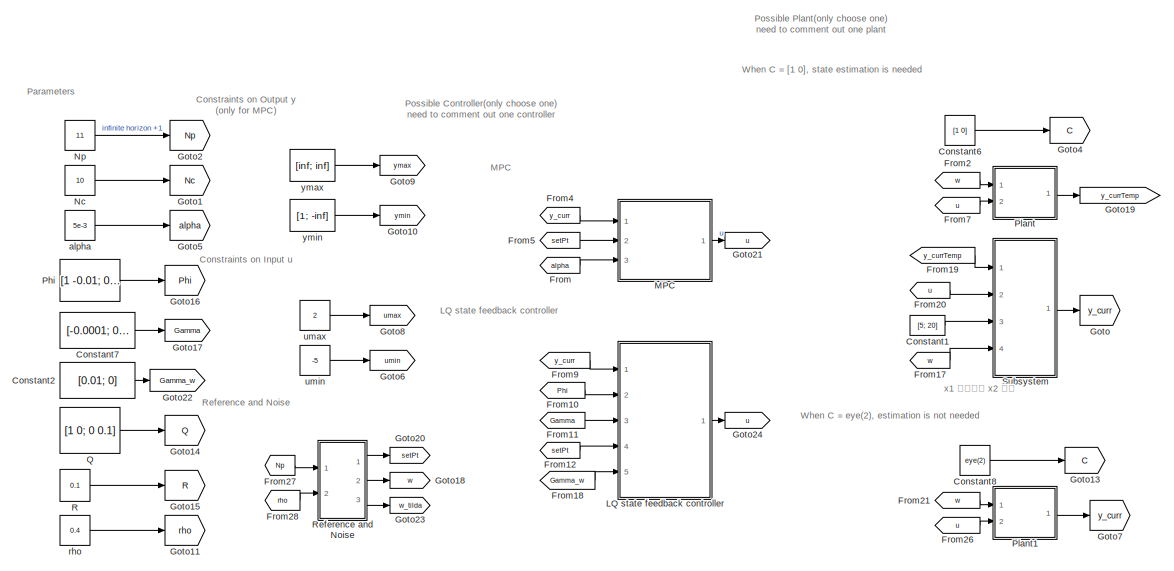
[diagram: root canvas - part 1/2, left side, full height]
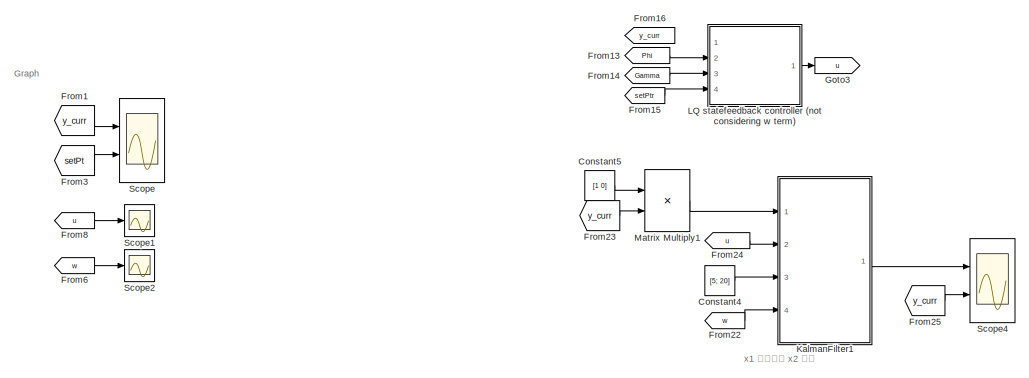
[diagram: root canvas - part 2/2, middle right region]
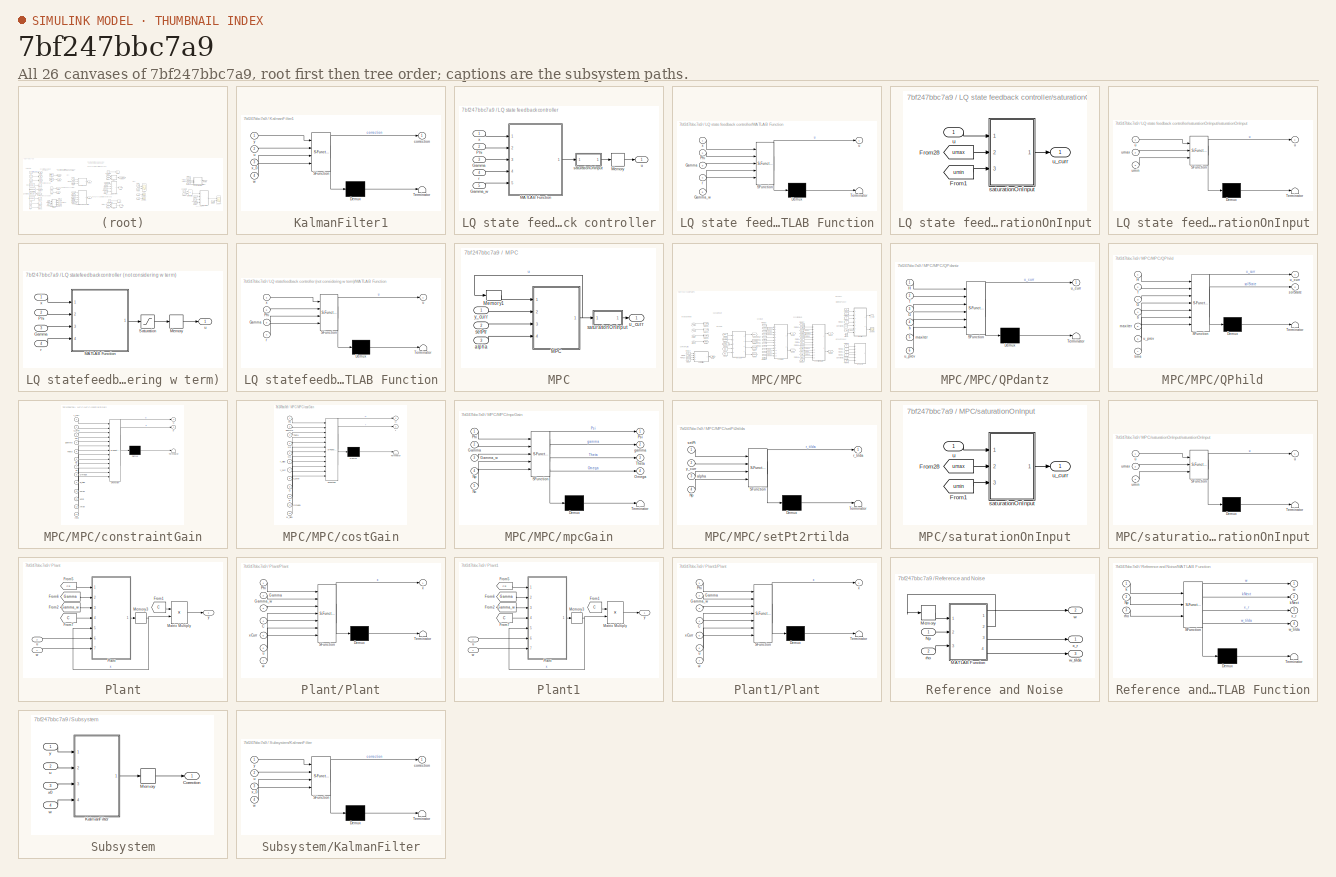
[diagram: thumbnail index - all 26 canvases of the model, root first then tree order]
MODEL slx_7bf247bbc7a9
KIND model
CONFIG AbsTol = auto
CONFIG EnableMultiTasking = off
CONFIG FixedStep = 0.01
CONFIG InitFcn = Np = 10; Nc = 10;
CONFIG MaxStep = auto
CONFIG MinStep = auto
CONFIG RelTol = 1e-3
CONFIG SampleTimeConstraint = Unconstrained
CONFIG Solver = FixedStepDiscrete
CONFIG SolverName = FixedStepDiscrete
CONFIG StartTime = 0.0
CONFIG StopTime = 20
BLOCK [Constant] Constant1
  Commented = on
  Value = [5; 20]
BLOCK [Constant] Constant2
  Commented = on
  Value = [0.01; 0]
  VectorParams1D = off
BLOCK [Constant] Constant4
  Commented = on
  Value = [5; 20]
BLOCK [Constant] Constant5
  Commented = on
  Value = [1 0]
  VectorParams1D = off
BLOCK [Constant] Constant6
  Commented = on
  Value = [1 0]
  VectorParams1D = off
BLOCK [Constant] Constant7
  Commented = on
  Value = [-0.0001; 0.01]
  VectorParams1D = off
BLOCK [Constant] Constant8
  Value = eye(2)
  VectorParams1D = off
BLOCK [From] From
  GotoTag = alpha
  TagVisibility = global
BLOCK [From] From1
  GotoTag = y_curr
BLOCK [From] From10
  Commented = on
  GotoTag = Phi
  TagVisibility = global
BLOCK [From] From11
  Commented = on
  GotoTag = Gamma
  TagVisibility = global
BLOCK [From] From12
  Commented = on
  GotoTag = setPt
BLOCK [From] From13
  Commented = on
  GotoTag = Phi
  TagVisibility = global
BLOCK [From] From14
  Commented = on
  GotoTag = Gamma
  TagVisibility = global
BLOCK [From] From15
  Commented = on
  GotoTag = setPtr
BLOCK [From] From16
  Commented = on
  GotoTag = y_curr
BLOCK [From] From17
  Commented = on
  GotoTag = w
BLOCK [From] From18
  Commented = on
  GotoTag = Gamma_w
  TagVisibility = global
BLOCK [From] From19
  Commented = on
  GotoTag = y_currTemp
BLOCK [From] From2
  Commented = on
  GotoTag = w
BLOCK [From] From20
  Commented = on
  GotoTag = u
BLOCK [From] From21
  GotoTag = w
BLOCK [From] From22
  Commented = on
  GotoTag = w
BLOCK [From] From23
  Commented = on
  GotoTag = y_curr
BLOCK [From] From24
  Commented = on
  GotoTag = u
BLOCK [From] From25
  Commented = on
  GotoTag = y_curr
BLOCK [From] From26
  GotoTag = u
BLOCK [From] From27
  GotoTag = Np
  TagVisibility = global
BLOCK [From] From28
  GotoTag = rho
  TagVisibility = global
BLOCK [From] From3
  GotoTag = setPt
BLOCK [From] From4
  GotoTag = y_curr
BLOCK [From] From5
  GotoTag = setPt
BLOCK [From] From6
  GotoTag = w
BLOCK [From] From7
  Commented = on
  GotoTag = u
BLOCK [From] From8
  GotoTag = u
BLOCK [From] From9
  Commented = on
  GotoTag = y_curr
BLOCK [Goto] Goto
  Commented = on
  GotoTag = y_curr
BLOCK [Goto] Goto1
  Commented = on
  GotoTag = Nc
  TagVisibility = global
BLOCK [Goto] Goto10
  GotoTag = ymin
  TagVisibility = global
BLOCK [Goto] Goto11
  Commented = on
  GotoTag = rho
  TagVisibility = global
BLOCK [Goto] Goto13
  GotoTag = C
  TagVisibility = global
BLOCK [Goto] Goto14
  Commented = on
  GotoTag = Q
  TagVisibility = global
BLOCK [Goto] Goto15
  Commented = on
  GotoTag = R
  TagVisibility = global
BLOCK [Goto] Goto16
  Commented = on
  GotoTag = Phi
  TagVisibility = global
BLOCK [Goto] Goto17
  Commented = on
  GotoTag = Gamma
  TagVisibility = global
BLOCK [Goto] Goto18
  GotoTag = w
BLOCK [Goto] Goto19
  Commented = on
  GotoTag = y_currTemp
BLOCK [Goto] Goto2
  Commented = on
  GotoTag = Np
  TagVisibility = global
BLOCK [Goto] Goto20
  GotoTag = setPt
BLOCK [Goto] Goto21
  GotoTag = u
BLOCK [Goto] Goto22
  Commented = on
  GotoTag = Gamma_w
  TagVisibility = global
BLOCK [Goto] Goto23
  GotoTag = w_tilda
  TagVisibility = global
BLOCK [Goto] Goto24
  Commented = on
  GotoTag = u
BLOCK [Goto] Goto3
  Commented = on
  GotoTag = u
BLOCK [Goto] Goto4
  Commented = on
  GotoTag = C
  TagVisibility = global
BLOCK [Goto] Goto5
  Commented = on
  GotoTag = alpha
  TagVisibility = global
BLOCK [Goto] Goto6
  GotoTag = umin
  TagVisibility = global
BLOCK [Goto] Goto7
  GotoTag = y_curr
BLOCK [Goto] Goto8
  GotoTag = umax
  TagVisibility = global
BLOCK [Goto] Goto9
  GotoTag = ymax
  TagVisibility = global
BLOCK [SubSystem] KalmanFilter1
  Commented = on
  ErrorFcn = Stateflow.Translate.translate
  PermitHierarchicalResolution = ExplicitOnly
  Ports = [4, 1]
  RequestExecContextInheritance = off
  SFBlockType = MATLAB Function
  TreatAsAtomicUnit = on
BLOCK [Demux] KalmanFilter1/ Demux 
  Outputs = 1
  Ports = [1, 1]
BLOCK [S-Function] KalmanFilter1/ SFunction 
  EnableBusSupport = on
  FunctionName = sf_sfun
  PortCounts = [4 2]
  Ports = [4, 2]
  SFcnIsStateOwnerBlock = off
  SFunctionDeploymentMode = off
  Tag = Stateflow S-Function 12
BLOCK [Terminator] KalmanFilter1/ Terminator 
BLOCK [Outport] KalmanFilter1/correction
  IconDisplay = Port number
BLOCK [Inport] KalmanFilter1/u
  IconDisplay = Port number
  Port = 2
BLOCK [Inport] KalmanFilter1/w
  IconDisplay = Port number
  Port = 4
BLOCK [Inport] KalmanFilter1/x_0
  IconDisplay = Port number
  Port = 3
BLOCK [Inport] KalmanFilter1/y
  IconDisplay = Port number
BLOCK [SubSystem] LQ state feedback controller
  Commented = on
  Ports = [5, 1]
  RequestExecContextInheritance = off
BLOCK [Inport] LQ state feedback controller/Gamma
  IconDisplay = Port number
  Port = 3
BLOCK [Inport] LQ state feedback controller/Gamma_w
  IconDisplay = Port number
  Port = 5
BLOCK [SubSystem] LQ state feedback controller/MATLAB Function
  ErrorFcn = Stateflow.Translate.translate
  PermitHierarchicalResolution = ExplicitOnly
  Ports = [5, 1]
  RequestExecContextInheritance = off
  SFBlockType = MATLAB Function
  TreatAsAtomicUnit = on
BLOCK [Demux] LQ state feedback controller/MATLAB Function/ Demux 
  Outputs = 1
  Ports = [1, 1]
BLOCK [S-Function] LQ state feedback controller/MATLAB Function/ SFunction 
  EnableBusSupport = on
  FunctionName = sf_sfun
  PortCounts = [5 2]
  Ports = [5, 2]
  SFcnIsStateOwnerBlock = off
  SFunctionDeploymentMode = off
  Tag = Stateflow S-Function 3
BLOCK [Terminator] LQ state feedback controller/MATLAB Function/ Terminator 
BLOCK [Inport] LQ state feedback controller/MATLAB Function/Gamma
  IconDisplay = Port number
  Port = 3
BLOCK [Inport] LQ state feedback controller/MATLAB Function/Gamma_w
  IconDisplay = Port number
  Port = 5
BLOCK [Inport] LQ state feedback controller/MATLAB Function/Phi
  IconDisplay = Port number
  Port = 2
BLOCK [Inport] LQ state feedback controller/MATLAB Function/r
  IconDisplay = Port number
  Port = 4
BLOCK [Outport] LQ state feedback controller/MATLAB Function/u
  IconDisplay = Port number
BLOCK [Inport] LQ state feedback controller/MATLAB Function/x
  IconDisplay = Port number
BLOCK [Memory] LQ state feedback controller/Memory
BLOCK [Inport] LQ state feedback controller/Phi
  IconDisplay = Port number
  Port = 2
BLOCK [Inport] LQ state feedback controller/r
  IconDisplay = Port number
  Port = 4
BLOCK [SubSystem] LQ state feedback controller/saturationOnInput
  Ports = [1, 1]
  RequestExecContextInheritance = off
BLOCK [From] LQ state feedback controller/saturationOnInput/From1
  GotoTag = umin
  TagVisibility = global
BLOCK [From] LQ state feedback controller/saturationOnInput/From28
  GotoTag = umax
  TagVisibility = global
BLOCK [SubSystem] LQ state feedback controller/saturationOnInput/saturationOnInput
  ErrorFcn = Stateflow.Translate.translate
  PermitHierarchicalResolution = ExplicitOnly
  Ports = [3, 1]
  RequestExecContextInheritance = off
  SFBlockType = MATLAB Function
  TreatAsAtomicUnit = on
BLOCK [Demux] LQ state feedback controller/saturationOnInput/saturationOnInput/ Demux 
  Outputs = 1
  Ports = [1, 1]
BLOCK [S-Function] LQ state feedback controller/saturationOnInput/saturationOnInput/ SFunction 
  EnableBusSupport = on
  FunctionName = sf_sfun
  PortCounts = [3 2]
  Ports = [3, 2]
  SFcnIsStateOwnerBlock = off
  SFunctionDeploymentMode = off
  Tag = Stateflow S-Function 15
BLOCK [Terminator] LQ state feedback controller/saturationOnInput/saturationOnInput/ Terminator 
BLOCK [Outport] LQ state feedback controller/saturationOnInput/saturationOnInput/u
  IconDisplay = Port number
BLOCK [Inport] LQ state feedback controller/saturationOnInput/saturationOnInput/u 
  IconDisplay = Port number
BLOCK [Inport] LQ state feedback controller/saturationOnInput/saturationOnInput/umax
  IconDisplay = Port number
  Port = 2
BLOCK [Inport] LQ state feedback controller/saturationOnInput/saturationOnInput/umin
  IconDisplay = Port number
  Port = 3
BLOCK [Inport] LQ state feedback controller/saturationOnInput/u
  IconDisplay = Port number
BLOCK [Outport] LQ state feedback controller/saturationOnInput/u_curr
  IconDisplay = Port number
BLOCK [Outport] LQ state feedback controller/u
  IconDisplay = Port number
BLOCK [Inport] LQ state feedback controller/x
  IconDisplay = Port number
BLOCK [SubSystem] LQ statefeedback controller (not considering w term)
  Commented = on
  Ports = [4, 1]
  RequestExecContextInheritance = off
BLOCK [Inport] LQ statefeedback controller (not considering w term)/Gamma
  IconDisplay = Port number
  Port = 3
BLOCK [SubSystem] LQ statefeedback controller (not considering w term)/MATLAB Function
  ErrorFcn = Stateflow.Translate.translate
  PermitHierarchicalResolution = ExplicitOnly
  Ports = [4, 1]
  RequestExecContextInheritance = off
  SFBlockType = MATLAB Function
  TreatAsAtomicUnit = on
BLOCK [Demux] LQ statefeedback controller (not considering w term)/MATLAB Function/ Demux 
  Outputs = 1
  Ports = [1, 1]
BLOCK [S-Function] LQ statefeedback controller (not considering w term)/MATLAB Function/ SFunction 
  EnableBusSupport = on
  FunctionName = sf_sfun
  PortCounts = [4 2]
  Ports = [4, 2]
  SFcnIsStateOwnerBlock = off
  SFunctionDeploymentMode = off
  Tag = Stateflow S-Function 4
BLOCK [Terminator] LQ statefeedback controller (not considering w term)/MATLAB Function/ Terminator 
BLOCK [Inport] LQ statefeedback controller (not considering w term)/MATLAB Function/Gamma
  IconDisplay = Port number
  Port = 3
BLOCK [Inport] LQ statefeedback controller (not considering w term)/MATLAB Function/Phi
  IconDisplay = Port number
  Port = 2
BLOCK [Inport] LQ statefeedback controller (not considering w term)/MATLAB Function/r
  IconDisplay = Port number
  Port = 4
BLOCK [Outport] LQ statefeedback controller (not considering w term)/MATLAB Function/u
  IconDisplay = Port number
BLOCK [Inport] LQ statefeedback controller (not considering w term)/MATLAB Function/x
  IconDisplay = Port number
BLOCK [Memory] LQ statefeedback controller (not considering w term)/Memory
BLOCK [Inport] LQ statefeedback controller (not considering w term)/Phi
  IconDisplay = Port number
  Port = 2
BLOCK [Saturate] LQ statefeedback controller (not considering w term)/Saturation
  InputPortMap = u0
  LowerLimit = -5
  Ports = [1, 1]
  UpperLimit = 2
BLOCK [Inport] LQ statefeedback controller (not considering w term)/r
  IconDisplay = Port number
  Port = 4
BLOCK [Outport] LQ statefeedback controller (not considering w term)/u
  IconDisplay = Port number
BLOCK [Inport] LQ statefeedback controller (not considering w term)/x
  IconDisplay = Port number
BLOCK [SubSystem] MPC
  Ports = [3, 1]
  RequestExecContextInheritance = off
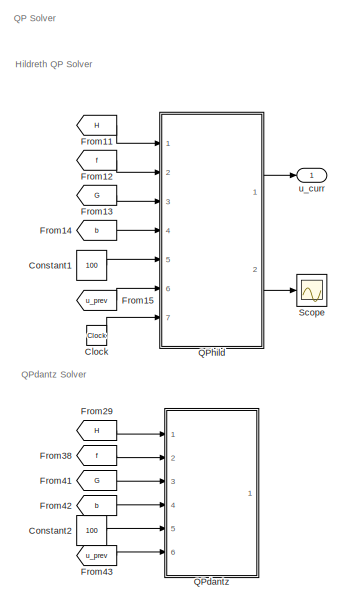
[diagram: MPC/MPC - part 1/2, right side, full height]
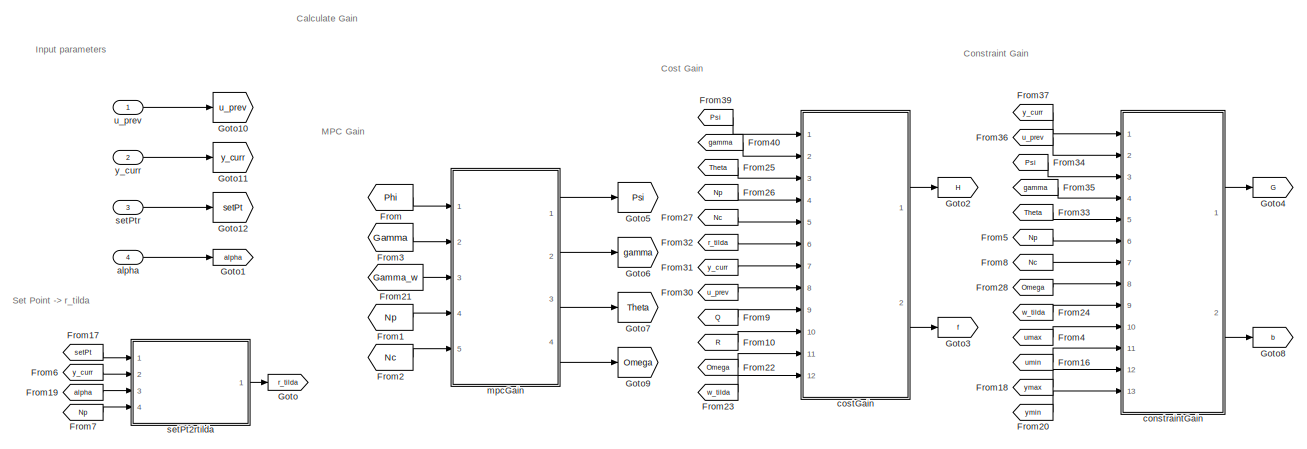
[diagram: MPC/MPC - part 2/2, full width, middle band]
BLOCK [SubSystem] MPC/MPC
  Ports = [4, 1]
  RequestExecContextInheritance = off
BLOCK [Clock] MPC/MPC/Clock
BLOCK [Constant] MPC/MPC/Constant1
  Value = 100
BLOCK [Constant] MPC/MPC/Constant2
  Commented = on
  Value = 100
BLOCK [From] MPC/MPC/From
  GotoTag = Phi
  TagVisibility = global
BLOCK [From] MPC/MPC/From1
  GotoTag = Np
  TagVisibility = global
BLOCK [From] MPC/MPC/From10
  GotoTag = R
  TagVisibility = global
BLOCK [From] MPC/MPC/From11
  GotoTag = H
BLOCK [From] MPC/MPC/From12
  GotoTag = f
BLOCK [From] MPC/MPC/From13
  GotoTag = G
BLOCK [From] MPC/MPC/From14
  GotoTag = b
BLOCK [From] MPC/MPC/From15
  GotoTag = u_prev
BLOCK [From] MPC/MPC/From16
  GotoTag = umin
  TagVisibility = global
BLOCK [From] MPC/MPC/From17
  GotoTag = setPt
BLOCK [From] MPC/MPC/From18
  GotoTag = ymax
  TagVisibility = global
BLOCK [From] MPC/MPC/From19
  GotoTag = alpha
BLOCK [From] MPC/MPC/From2
  GotoTag = Nc
  TagVisibility = global
BLOCK [From] MPC/MPC/From20
  GotoTag = ymin
  TagVisibility = global
BLOCK [From] MPC/MPC/From21
  GotoTag = Gamma_w
  TagVisibility = global
BLOCK [From] MPC/MPC/From22
  GotoTag = Omega
BLOCK [From] MPC/MPC/From23
  GotoTag = w_tilda
  TagVisibility = global
BLOCK [From] MPC/MPC/From24
  GotoTag = w_tilda
  TagVisibility = global
BLOCK [From] MPC/MPC/From25
  GotoTag = Theta
BLOCK [From] MPC/MPC/From26
  GotoTag = Np
  TagVisibility = global
BLOCK [From] MPC/MPC/From27
  GotoTag = Nc
  TagVisibility = global
BLOCK [From] MPC/MPC/From28
  GotoTag = Omega
BLOCK [From] MPC/MPC/From29
  Commented = on
  GotoTag = H
BLOCK [From] MPC/MPC/From3
  GotoTag = Gamma
  TagVisibility = global
BLOCK [From] MPC/MPC/From30
  GotoTag = u_prev
BLOCK [From] MPC/MPC/From31
  GotoTag = y_curr
BLOCK [From] MPC/MPC/From32
  GotoTag = r_tilda
BLOCK [From] MPC/MPC/From33
  GotoTag = Theta
BLOCK [From] MPC/MPC/From34
  GotoTag = Psi
BLOCK [From] MPC/MPC/From35
  GotoTag = gamma
BLOCK [From] MPC/MPC/From36
  GotoTag = u_prev
BLOCK [From] MPC/MPC/From37
  GotoTag = y_curr
BLOCK [From] MPC/MPC/From38
  Commented = on
  GotoTag = f
BLOCK [From] MPC/MPC/From39
  GotoTag = Psi
BLOCK [From] MPC/MPC/From4
  GotoTag = umax
  TagVisibility = global
BLOCK [From] MPC/MPC/From40
  GotoTag = gamma
BLOCK [From] MPC/MPC/From41
  Commented = on
  GotoTag = G
BLOCK [From] MPC/MPC/From42
  Commented = on
  GotoTag = b
BLOCK [From] MPC/MPC/From43
  Commented = on
  GotoTag = u_prev
BLOCK [From] MPC/MPC/From5
  GotoTag = Np
  TagVisibility = global
BLOCK [From] MPC/MPC/From6
  GotoTag = y_curr
BLOCK [From] MPC/MPC/From7
  GotoTag = Np
  TagVisibility = global
BLOCK [From] MPC/MPC/From8
  GotoTag = Nc
  TagVisibility = global
BLOCK [From] MPC/MPC/From9
  GotoTag = Q
  TagVisibility = global
BLOCK [Goto] MPC/MPC/Goto
  GotoTag = r_tilda
BLOCK [Goto] MPC/MPC/Goto1
  GotoTag = alpha
BLOCK [Goto] MPC/MPC/Goto10
  GotoTag = u_prev
BLOCK [Goto] MPC/MPC/Goto11
  GotoTag = y_curr
BLOCK [Goto] MPC/MPC/Goto12
  GotoTag = setPt
BLOCK [Goto] MPC/MPC/Goto2
  GotoTag = H
BLOCK [Goto] MPC/MPC/Goto3
  GotoTag = f
BLOCK [Goto] MPC/MPC/Goto4
  GotoTag = G
BLOCK [Goto] MPC/MPC/Goto5
  GotoTag = Psi
BLOCK [Goto] MPC/MPC/Goto6
  GotoTag = gamma
BLOCK [Goto] MPC/MPC/Goto7
  GotoTag = Theta
BLOCK [Goto] MPC/MPC/Goto8
  GotoTag = b
BLOCK [Goto] MPC/MPC/Goto9
  GotoTag = Omega
BLOCK [SubSystem] MPC/MPC/QPdantz
  Commented = on
  ErrorFcn = Stateflow.Translate.translate
  PermitHierarchicalResolution = ExplicitOnly
  Ports = [6, 1]
  RequestExecContextInheritance = off
  SFBlockType = MATLAB Function
  TreatAsAtomicUnit = on
BLOCK [Demux] MPC/MPC/QPdantz/ Demux 
  Outputs = 1
  Ports = [1, 1]
BLOCK [S-Function] MPC/MPC/QPdantz/ SFunction 
  EnableBusSupport = on
  FunctionName = sf_sfun
  PortCounts = [6 2]
  Ports = [6, 2]
  SFcnIsStateOwnerBlock = off
  SFunctionDeploymentMode = off
  Tag = Stateflow S-Function 7
BLOCK [Terminator] MPC/MPC/QPdantz/ Terminator 
BLOCK [Inport] MPC/MPC/QPdantz/G
  IconDisplay = Port number
  Port = 3
BLOCK [Inport] MPC/MPC/QPdantz/H
  IconDisplay = Port number
BLOCK [Inport] MPC/MPC/QPdantz/b
  IconDisplay = Port number
  Port = 4
BLOCK [Inport] MPC/MPC/QPdantz/f
  IconDisplay = Port number
  Port = 2
BLOCK [Inport] MPC/MPC/QPdantz/maxiter
  IconDisplay = Port number
  Port = 5
BLOCK [Outport] MPC/MPC/QPdantz/u_curr
  IconDisplay = Port number
BLOCK [Inport] MPC/MPC/QPdantz/u_prev
  IconDisplay = Port number
  Port = 6
BLOCK [SubSystem] MPC/MPC/QPhild
  ErrorFcn = Stateflow.Translate.translate
  PermitHierarchicalResolution = ExplicitOnly
  Ports = [7, 2]
  RequestExecContextInheritance = off
  SFBlockType = MATLAB Function
  TreatAsAtomicUnit = on
BLOCK [Demux] MPC/MPC/QPhild/ Demux 
  Outputs = 1
  Ports = [1, 1]
BLOCK [S-Function] MPC/MPC/QPhild/ SFunction 
  EnableBusSupport = on
  FunctionName = sf_sfun
  PortCounts = [7 3]
  Ports = [7, 3]
  SFcnIsStateOwnerBlock = off
  SFunctionDeploymentMode = off
  Tag = Stateflow S-Function 9
BLOCK [Terminator] MPC/MPC/QPhild/ Terminator 
BLOCK [Inport] MPC/MPC/QPhild/G
  IconDisplay = Port number
  Port = 3
BLOCK [Inport] MPC/MPC/QPhild/H
  IconDisplay = Port number
BLOCK [Inport] MPC/MPC/QPhild/b
  IconDisplay = Port number
  Port = 4
BLOCK [Inport] MPC/MPC/QPhild/f
  IconDisplay = Port number
  Port = 2
BLOCK [Inport] MPC/MPC/QPhild/maxiter
  IconDisplay = Port number
  Port = 5
BLOCK [Outport] MPC/MPC/QPhild/solState
  IconDisplay = Port number
  Port = 2
BLOCK [Inport] MPC/MPC/QPhild/time
  IconDisplay = Port number
  Port = 7
BLOCK [Outport] MPC/MPC/QPhild/u_curr
  IconDisplay = Port number
BLOCK [Inport] MPC/MPC/QPhild/u_prev
  IconDisplay = Port number
  Port = 6
BLOCK [Scope] MPC/MPC/Scope
  Floating = off
  NumInputPorts = 1
  Ports = [1]
  ScopeSpecificationString = Simulink.scopes.TimeScopeBlockCfg('CurrentConfiguration', extmgr.ConfigurationSet(extmgr.Configuration('Core','General UI',true),extmgr.Configuration('Core','Source UI',true),extmgr.Configuration('Sources','WiredSimulink',true,'DataLoggingVariableName','ScopeData1'),extmgr.Configuration('Visuals','Time Domain',true,'SerializedDisplays',{struct('MinYLimReal','0.875','MaxYLimReal','2.125','YLabelRea...<+1537ch>
BLOCK [Inport] MPC/MPC/alpha
  IconDisplay = Port number
  Port = 4
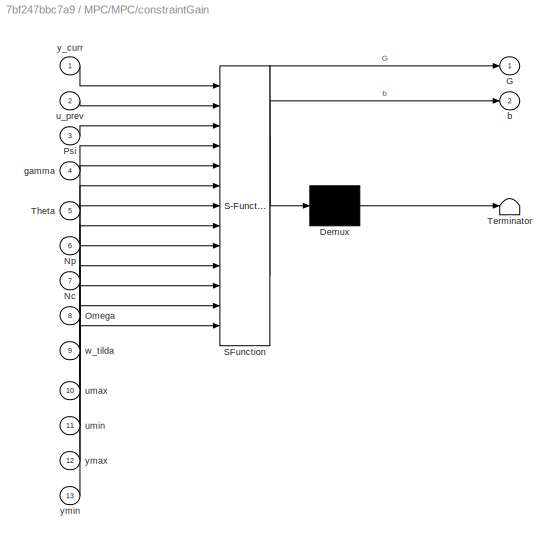
BLOCK [SubSystem] MPC/MPC/constraintGain
  ErrorFcn = Stateflow.Translate.translate
  PermitHierarchicalResolution = ExplicitOnly
  Ports = [13, 2]
  RequestExecContextInheritance = off
  SFBlockType = MATLAB Function
  TreatAsAtomicUnit = on
BLOCK [Demux] MPC/MPC/constraintGain/ Demux 
  Outputs = 1
  Ports = [1, 1]
BLOCK [S-Function] MPC/MPC/constraintGain/ SFunction 
  EnableBusSupport = on
  FunctionName = sf_sfun
  PortCounts = [13 3]
  Ports = [13, 3]
  SFcnIsStateOwnerBlock = off
  SFunctionDeploymentMode = off
  Tag = Stateflow S-Function 10
BLOCK [Terminator] MPC/MPC/constraintGain/ Terminator 
BLOCK [Outport] MPC/MPC/constraintGain/G
  IconDisplay = Port number
BLOCK [Inport] MPC/MPC/constraintGain/Nc
  IconDisplay = Port number
  Port = 7
BLOCK [Inport] MPC/MPC/constraintGain/Np
  IconDisplay = Port number
  Port = 6
BLOCK [Inport] MPC/MPC/constraintGain/Omega
  IconDisplay = Port number
  Port = 8
BLOCK [Inport] MPC/MPC/constraintGain/Psi
  IconDisplay = Port number
  Port = 3
BLOCK [Inport] MPC/MPC/constraintGain/Theta
  IconDisplay = Port number
  Port = 5
BLOCK [Outport] MPC/MPC/constraintGain/b
  IconDisplay = Port number
  Port = 2
BLOCK [Inport] MPC/MPC/constraintGain/gamma
  IconDisplay = Port number
  Port = 4
BLOCK [Inport] MPC/MPC/constraintGain/u_prev
  IconDisplay = Port number
  Port = 2
BLOCK [Inport] MPC/MPC/constraintGain/umax
  IconDisplay = Port number
  Port = 10
BLOCK [Inport] MPC/MPC/constraintGain/umin
  IconDisplay = Port number
  Port = 11
BLOCK [Inport] MPC/MPC/constraintGain/w_tilda
  IconDisplay = Port number
  Port = 9
BLOCK [Inport] MPC/MPC/constraintGain/y_curr
  IconDisplay = Port number
BLOCK [Inport] MPC/MPC/constraintGain/ymax
  IconDisplay = Port number
  Port = 12
BLOCK [Inport] MPC/MPC/constraintGain/ymin
  IconDisplay = Port number
  Port = 13
BLOCK [SubSystem] MPC/MPC/costGain
  ErrorFcn = Stateflow.Translate.translate
  PermitHierarchicalResolution = ExplicitOnly
  Ports = [12, 2]
  RequestExecContextInheritance = off
  SFBlockType = MATLAB Function
  TreatAsAtomicUnit = on
BLOCK [Demux] MPC/MPC/costGain/ Demux 
  Outputs = 1
  Ports = [1, 1]
BLOCK [S-Function] MPC/MPC/costGain/ SFunction 
  EnableBusSupport = on
  FunctionName = sf_sfun
  PortCounts = [12 3]
  Ports = [12, 3]
  SFcnIsStateOwnerBlock = off
  SFunctionDeploymentMode = off
  Tag = Stateflow S-Function 8
BLOCK [Terminator] MPC/MPC/costGain/ Terminator 
BLOCK [Outport] MPC/MPC/costGain/H
  IconDisplay = Port number
BLOCK [Inport] MPC/MPC/costGain/Nc
  IconDisplay = Port number
  Port = 5
BLOCK [Inport] MPC/MPC/costGain/Np
  IconDisplay = Port number
  Port = 4
BLOCK [Inport] MPC/MPC/costGain/Omega
  IconDisplay = Port number
  Port = 11
BLOCK [Inport] MPC/MPC/costGain/Psi
  IconDisplay = Port number
BLOCK [Inport] MPC/MPC/costGain/Q
  IconDisplay = Port number
  Port = 9
BLOCK [Inport] MPC/MPC/costGain/R
  IconDisplay = Port number
  Port = 10
BLOCK [Inport] MPC/MPC/costGain/Theta
  IconDisplay = Port number
  Port = 3
BLOCK [Outport] MPC/MPC/costGain/f
  IconDisplay = Port number
  Port = 2
BLOCK [Inport] MPC/MPC/costGain/gamma
  IconDisplay = Port number
  Port = 2
BLOCK [Inport] MPC/MPC/costGain/r_tilda
  IconDisplay = Port number
  Port = 6
BLOCK [Inport] MPC/MPC/costGain/u_prev
  IconDisplay = Port number
  Port = 8
BLOCK [Inport] MPC/MPC/costGain/w_tilda
  IconDisplay = Port number
  Port = 12
BLOCK [Inport] MPC/MPC/costGain/y_curr
  IconDisplay = Port number
  Port = 7
BLOCK [SubSystem] MPC/MPC/mpcGain
  ErrorFcn = Stateflow.Translate.translate
  PermitHierarchicalResolution = ExplicitOnly
  Ports = [5, 4]
  RequestExecContextInheritance = off
  SFBlockType = MATLAB Function
  TreatAsAtomicUnit = on
BLOCK [Demux] MPC/MPC/mpcGain/ Demux 
  Outputs = 1
  Ports = [1, 1]
BLOCK [S-Function] MPC/MPC/mpcGain/ SFunction 
  EnableBusSupport = on
  FunctionName = sf_sfun
  PortCounts = [5 5]
  Ports = [5, 5]
  SFcnIsStateOwnerBlock = off
  SFunctionDeploymentMode = off
  Tag = Stateflow S-Function 1
BLOCK [Terminator] MPC/MPC/mpcGain/ Terminator 
BLOCK [Inport] MPC/MPC/mpcGain/Gamma
  IconDisplay = Port number
  Port = 2
BLOCK [Inport] MPC/MPC/mpcGain/Gamma_w
  IconDisplay = Port number
  Port = 3
BLOCK [Inport] MPC/MPC/mpcGain/Nc
  IconDisplay = Port number
  Port = 5
BLOCK [Inport] MPC/MPC/mpcGain/Np
  IconDisplay = Port number
  Port = 4
BLOCK [Outport] MPC/MPC/mpcGain/Omega
  IconDisplay = Port number
  Port = 4
BLOCK [Inport] MPC/MPC/mpcGain/Phi
  IconDisplay = Port number
BLOCK [Outport] MPC/MPC/mpcGain/Psi
  IconDisplay = Port number
BLOCK [Outport] MPC/MPC/mpcGain/Theta
  IconDisplay = Port number
  Port = 3
BLOCK [Outport] MPC/MPC/mpcGain/gamma
  IconDisplay = Port number
  Port = 2
BLOCK [SubSystem] MPC/MPC/setPt2rtilda
  ErrorFcn = Stateflow.Translate.translate
  PermitHierarchicalResolution = ExplicitOnly
  Ports = [4, 1]
  RequestExecContextInheritance = off
  SFBlockType = MATLAB Function
  TreatAsAtomicUnit = on
BLOCK [Demux] MPC/MPC/setPt2rtilda/ Demux 
  Outputs = 1
  Ports = [1, 1]
BLOCK [S-Function] MPC/MPC/setPt2rtilda/ SFunction 
  EnableBusSupport = on
  FunctionName = sf_sfun
  PortCounts = [4 2]
  Ports = [4, 2]
  SFcnIsStateOwnerBlock = off
  SFunctionDeploymentMode = off
  Tag = Stateflow S-Function 5
BLOCK [Terminator] MPC/MPC/setPt2rtilda/ Terminator 
BLOCK [Inport] MPC/MPC/setPt2rtilda/Np
  IconDisplay = Port number
  Port = 4
BLOCK [Inport] MPC/MPC/setPt2rtilda/alpha
  IconDisplay = Port number
  Port = 3
BLOCK [Outport] MPC/MPC/setPt2rtilda/r_tilda
  IconDisplay = Port number
BLOCK [Inport] MPC/MPC/setPt2rtilda/setPt
  IconDisplay = Port number
BLOCK [Inport] MPC/MPC/setPt2rtilda/y_curr
  IconDisplay = Port number
  Port = 2
BLOCK [Inport] MPC/MPC/setPtr
  IconDisplay = Port number
  Port = 3
BLOCK [Outport] MPC/MPC/u_curr
  IconDisplay = Port number
BLOCK [Inport] MPC/MPC/u_prev
  IconDisplay = Port number
BLOCK [Inport] MPC/MPC/y_curr
  IconDisplay = Port number
  Port = 2
BLOCK [Memory] MPC/Memory1
BLOCK [Inport] MPC/alpha
  IconDisplay = Port number
  Port = 3
BLOCK [SubSystem] MPC/saturationOnInput
  Ports = [1, 1]
  RequestExecContextInheritance = off
BLOCK [From] MPC/saturationOnInput/From1
  GotoTag = umin
  TagVisibility = global
BLOCK [From] MPC/saturationOnInput/From28
  GotoTag = umax
  TagVisibility = global
BLOCK [SubSystem] MPC/saturationOnInput/saturationOnInput
  ErrorFcn = Stateflow.Translate.translate
  PermitHierarchicalResolution = ExplicitOnly
  Ports = [3, 1]
  RequestExecContextInheritance = off
  SFBlockType = MATLAB Function
  TreatAsAtomicUnit = on
BLOCK [Demux] MPC/saturationOnInput/saturationOnInput/ Demux 
  Outputs = 1
  Ports = [1, 1]
BLOCK [S-Function] MPC/saturationOnInput/saturationOnInput/ SFunction 
  EnableBusSupport = on
  FunctionName = sf_sfun
  PortCounts = [3 2]
  Ports = [3, 2]
  SFcnIsStateOwnerBlock = off
  SFunctionDeploymentMode = off
  Tag = Stateflow S-Function 14
BLOCK [Terminator] MPC/saturationOnInput/saturationOnInput/ Terminator 
BLOCK [Outport] MPC/saturationOnInput/saturationOnInput/u
  IconDisplay = Port number
BLOCK [Inport] MPC/saturationOnInput/saturationOnInput/u 
  IconDisplay = Port number
BLOCK [Inport] MPC/saturationOnInput/saturationOnInput/umax
  IconDisplay = Port number
  Port = 2
BLOCK [Inport] MPC/saturationOnInput/saturationOnInput/umin
  IconDisplay = Port number
  Port = 3
BLOCK [Inport] MPC/saturationOnInput/u
  IconDisplay = Port number
BLOCK [Outport] MPC/saturationOnInput/u_curr
  IconDisplay = Port number
BLOCK [Inport] MPC/setPtr
  IconDisplay = Port number
  Port = 2
BLOCK [Outport] MPC/u_curr
  IconDisplay = Port number
BLOCK [Inport] MPC/y_curr
  IconDisplay = Port number
BLOCK [Product] Matrix Multiply1
  Commented = on
  InputSameDT = off
  Multiplication = Matrix(*)
  OutDataTypeStr = Inherit: Inherit via internal rule
  Ports = [2, 1]
  RndMeth = Floor
  SaturateOnIntegerOverflow = off
BLOCK [Constant] Nc
  Commented = on
  Value = 10
BLOCK [Constant] Np
  Commented = on
  Value = 11
BLOCK [Constant] Phi
  Commented = on
  Value = [1 -0.01; 0 1]
BLOCK [SubSystem] Plant
  Commented = on
  Ports = [2, 1]
  RequestExecContextInheritance = off
BLOCK [From] Plant/From1
  GotoTag = C
  TagVisibility = global
BLOCK [From] Plant/From2
  GotoTag = Gamma_w
  TagVisibility = global
BLOCK [From] Plant/From5
  GotoTag = Phi
  TagVisibility = global
BLOCK [From] Plant/From6
  GotoTag = Gamma
  TagVisibility = global
BLOCK [From] Plant/From7
  GotoTag = C
  TagVisibility = global
BLOCK [Product] Plant/Matrix Multiply
  InputSameDT = off
  Multiplication = Matrix(*)
  OutDataTypeStr = Inherit: Inherit via internal rule
  Ports = [2, 1]
  RndMeth = Floor
  SaturateOnIntegerOverflow = off
BLOCK [Memory] Plant/Memory3
  InitialCondition = [5; 20]
BLOCK [SubSystem] Plant/Plant
  ErrorFcn = Stateflow.Translate.translate
  PermitHierarchicalResolution = ExplicitOnly
  Ports = [7, 1]
  RequestExecContextInheritance = off
  SFBlockType = MATLAB Function
  TreatAsAtomicUnit = on
BLOCK [Demux] Plant/Plant/ Demux 
  Outputs = 1
  Ports = [1, 1]
BLOCK [S-Function] Plant/Plant/ SFunction 
  EnableBusSupport = on
  FunctionName = sf_sfun
  PortCounts = [7 2]
  Ports = [7, 2]
  SFcnIsStateOwnerBlock = off
  SFunctionDeploymentMode = off
  Tag = Stateflow S-Function 2
BLOCK [Terminator] Plant/Plant/ Terminator 
BLOCK [Inport] Plant/Plant/C
  IconDisplay = Port number
  Port = 4
BLOCK [Inport] Plant/Plant/Gamma
  IconDisplay = Port number
  Port = 2
BLOCK [Inport] Plant/Plant/Gamma_w
  IconDisplay = Port number
  Port = 3
BLOCK [Inport] Plant/Plant/Phi
  IconDisplay = Port number
BLOCK [Inport] Plant/Plant/u
  IconDisplay = Port number
  Port = 6
BLOCK [Inport] Plant/Plant/w
  IconDisplay = Port number
  Port = 7
BLOCK [Outport] Plant/Plant/x
  IconDisplay = Port number
BLOCK [Inport] Plant/Plant/xCurr
  IconDisplay = Port number
  Port = 5
BLOCK [Inport] Plant/u
  IconDisplay = Port number
  Port = 2
BLOCK [Inport] Plant/w
  IconDisplay = Port number
BLOCK [Outport] Plant/y
  IconDisplay = Port number
BLOCK [SubSystem] Plant1
  Ports = [2, 1]
  RequestExecContextInheritance = off
BLOCK [From] Plant1/From1
  GotoTag = C
  TagVisibility = global
BLOCK [From] Plant1/From2
  GotoTag = Gamma_w
  TagVisibility = global
BLOCK [From] Plant1/From5
  GotoTag = Phi
  TagVisibility = global
BLOCK [From] Plant1/From6
  GotoTag = Gamma
  TagVisibility = global
BLOCK [From] Plant1/From7
  GotoTag = C
  TagVisibility = global
BLOCK [Product] Plant1/Matrix Multiply
  InputSameDT = off
  Multiplication = Matrix(*)
  OutDataTypeStr = Inherit: Inherit via internal rule
  Ports = [2, 1]
  RndMeth = Floor
  SaturateOnIntegerOverflow = off
BLOCK [Memory] Plant1/Memory3
  InitialCondition = [5; 20]
BLOCK [SubSystem] Plant1/Plant
  ErrorFcn = Stateflow.Translate.translate
  PermitHierarchicalResolution = ExplicitOnly
  Ports = [7, 1]
  RequestExecContextInheritance = off
  SFBlockType = MATLAB Function
  TreatAsAtomicUnit = on
BLOCK [Demux] Plant1/Plant/ Demux 
  Outputs = 1
  Ports = [1, 1]
BLOCK [S-Function] Plant1/Plant/ SFunction 
  EnableBusSupport = on
  FunctionName = sf_sfun
  PortCounts = [7 2]
  Ports = [7, 2]
  SFcnIsStateOwnerBlock = off
  SFunctionDeploymentMode = off
  Tag = Stateflow S-Function 13
BLOCK [Terminator] Plant1/Plant/ Terminator 
BLOCK [Inport] Plant1/Plant/C
  IconDisplay = Port number
  Port = 4
BLOCK [Inport] Plant1/Plant/Gamma
  IconDisplay = Port number
  Port = 2
BLOCK [Inport] Plant1/Plant/Gamma_w
  IconDisplay = Port number
  Port = 3
BLOCK [Inport] Plant1/Plant/Phi
  IconDisplay = Port number
BLOCK [Inport] Plant1/Plant/u
  IconDisplay = Port number
  Port = 6
BLOCK [Inport] Plant1/Plant/w
  IconDisplay = Port number
  Port = 7
BLOCK [Outport] Plant1/Plant/x
  IconDisplay = Port number
BLOCK [Inport] Plant1/Plant/xCurr
  IconDisplay = Port number
  Port = 5
BLOCK [Inport] Plant1/u
  IconDisplay = Port number
  Port = 2
BLOCK [Inport] Plant1/w
  IconDisplay = Port number
BLOCK [Outport] Plant1/y
  IconDisplay = Port number
BLOCK [Constant] Q
  Commented = on
  Value = [1 0; 0 0.1]
BLOCK [Constant] R
  Commented = on
  Value = 0.1
  VectorParams1D = off
BLOCK [SubSystem] Reference and Noise
  Ports = [2, 3]
  RequestExecContextInheritance = off
BLOCK [SubSystem] Reference and Noise/MATLAB Function
  ErrorFcn = Stateflow.Translate.translate
  PermitHierarchicalResolution = ExplicitOnly
  Ports = [3, 4]
  RequestExecContextInheritance = off
  SFBlockType = MATLAB Function
  TreatAsAtomicUnit = on
BLOCK [Demux] Reference and Noise/MATLAB Function/ Demux 
  Outputs = 1
  Ports = [1, 1]
BLOCK [S-Function] Reference and Noise/MATLAB Function/ SFunction 
  EnableBusSupport = on
  FunctionName = sf_sfun
  PortCounts = [3 5]
  Ports = [3, 5]
  SFcnIsStateOwnerBlock = off
  SFunctionDeploymentMode = off
  Tag = Stateflow S-Function 6
BLOCK [Terminator] Reference and Noise/MATLAB Function/ Terminator 
BLOCK [Inport] Reference and Noise/MATLAB Function/Np
  IconDisplay = Port number
  Port = 2
BLOCK [Inport] Reference and Noise/MATLAB Function/k
  IconDisplay = Port number
BLOCK [Outport] Reference and Noise/MATLAB Function/kNext
  IconDisplay = Port number
  Port = 2
BLOCK [Inport] Reference and Noise/MATLAB Function/rho
  IconDisplay = Port number
  Port = 3
BLOCK [Outport] Reference and Noise/MATLAB Function/w
  IconDisplay = Port number
BLOCK [Outport] Reference and Noise/MATLAB Function/w_tilda
  IconDisplay = Port number
  Port = 4
BLOCK [Outport] Reference and Noise/MATLAB Function/x_r
  IconDisplay = Port number
  Port = 3
BLOCK [Memory] Reference and Noise/Memory
BLOCK [Inport] Reference and Noise/Np
  IconDisplay = Port number
BLOCK [Inport] Reference and Noise/rho
  IconDisplay = Port number
  Port = 2
BLOCK [Outport] Reference and Noise/w
  IconDisplay = Port number
  Port = 2
BLOCK [Outport] Reference and Noise/w_tilda
  IconDisplay = Port number
  Port = 3
BLOCK [Outport] Reference and Noise/x_r
  IconDisplay = Port number
BLOCK [Scope] Scope
  Floating = off
  NumInputPorts = 2
  Ports = [2]
  ScopeSpecificationString = Simulink.scopes.TimeScopeBlockCfg('CurrentConfiguration', extmgr.ConfigurationSet(extmgr.Configuration('Core','General UI',true),extmgr.Configuration('Core','Source UI',true),extmgr.Configuration('Sources','WiredSimulink',true),extmgr.Configuration('Visuals','Time Domain',true,'SerializedDisplays',{struct('MinYLimReal','-1.37409','MaxYLimReal','24.86009','YLabelReal','','MinYLimMag','0.00000','Max...<+1987ch>
BLOCK [Scope] Scope1
  Floating = off
  NumInputPorts = 1
  Ports = [1]
  ScopeSpecificationString = Simulink.scopes.TimeScopeBlockCfg('CurrentConfiguration', extmgr.ConfigurationSet(extmgr.Configuration('Core','General UI',true),extmgr.Configuration('Core','Source UI',true),extmgr.Configuration('Sources','WiredSimulink',true,'DataLoggingVariableName','ScopeData1'),extmgr.Configuration('Visuals','Time Domain',true,'SerializedDisplays',{struct('MinYLimReal','-5.875','MaxYLimReal','2.875','YLabelRe...<+1571ch>
BLOCK [Scope] Scope2
  Floating = off
  NumInputPorts = 1
  Ports = [1]
  ScopeSpecificationString = Simulink.scopes.TimeScopeBlockCfg('CurrentConfiguration', extmgr.ConfigurationSet(extmgr.Configuration('Core','General UI',true),extmgr.Configuration('Core','Source UI',true),extmgr.Configuration('Sources','WiredSimulink',true,'DataLoggingVariableName','ScopeData1'),extmgr.Configuration('Visuals','Time Domain',true,'SerializedDisplays',{struct('MinYLimReal','11.00000','MaxYLimReal','21.00000','YLa...<+1399ch>
BLOCK [Scope] Scope4
  Commented = on
  Floating = off
  NumInputPorts = 2
  Ports = [2]
  ScopeSpecificationString = Simulink.scopes.TimeScopeBlockCfg('CurrentConfiguration', extmgr.ConfigurationSet(extmgr.Configuration('Core','General UI',true),extmgr.Configuration('Core','Source UI',true),extmgr.Configuration('Sources','WiredSimulink',true,'DataLoggingVariableName','ScopeData3'),extmgr.Configuration('Visuals','Time Domain',true,'SerializedDisplays',{struct('MinYLimReal','-3.05078','MaxYLimReal','27.45704','YLa...<+2015ch>
BLOCK [SubSystem] Subsystem
  Commented = on
  Ports = [4, 1]
  RequestExecContextInheritance = off
BLOCK [Outport] Subsystem/Correction
  IconDisplay = Port number
BLOCK [SubSystem] Subsystem/KalmanFilter
  ErrorFcn = Stateflow.Translate.translate
  PermitHierarchicalResolution = ExplicitOnly
  Ports = [4, 1]
  RequestExecContextInheritance = off
  SFBlockType = MATLAB Function
  TreatAsAtomicUnit = on
BLOCK [Demux] Subsystem/KalmanFilter/ Demux 
  Outputs = 1
  Ports = [1, 1]
BLOCK [S-Function] Subsystem/KalmanFilter/ SFunction 
  EnableBusSupport = on
  FunctionName = sf_sfun
  PortCounts = [4 2]
  Ports = [4, 2]
  SFcnIsStateOwnerBlock = off
  SFunctionDeploymentMode = off
  Tag = Stateflow S-Function 61
BLOCK [Terminator] Subsystem/KalmanFilter/ Terminator 
BLOCK [Outport] Subsystem/KalmanFilter/correction
  IconDisplay = Port number
BLOCK [Inport] Subsystem/KalmanFilter/u
  IconDisplay = Port number
  Port = 2
BLOCK [Inport] Subsystem/KalmanFilter/w
  IconDisplay = Port number
  Port = 4
BLOCK [Inport] Subsystem/KalmanFilter/x_0
  IconDisplay = Port number
  Port = 3
BLOCK [Inport] Subsystem/KalmanFilter/y
  IconDisplay = Port number
BLOCK [Memory] Subsystem/Memory
  InitialCondition = [5; 20]
BLOCK [Inport] Subsystem/u
  IconDisplay = Port number
  Port = 2
BLOCK [Inport] Subsystem/w
  IconDisplay = Port number
  Port = 4
BLOCK [Inport] Subsystem/x0
  IconDisplay = Port number
  Port = 3
BLOCK [Inport] Subsystem/y
  IconDisplay = Port number
BLOCK [Constant] alpha
  Commented = on
  Value = 5e-3
BLOCK [Constant] rho
  Commented = on
  Value = 0.4
BLOCK [Constant] umax
  Value = 2
BLOCK [Constant] umin
  Value = -5
BLOCK [Constant] ymax
  Value = [inf; inf]
  VectorParams1D = off
BLOCK [Constant] ymin
  Value = [1; -inf]
  VectorParams1D = off
ANNOTATION (root): Constraints on Input u
ANNOTATION (root): Constraints on Output y (only for MPC)
ANNOTATION (root): Graph
ANNOTATION (root): LQ state feedback controller
ANNOTATION (root): MPC
ANNOTATION (root): Parameters
ANNOTATION (root): Possible Controller(only choose one) need to comment out one controller
ANNOTATION (root): Possible Plant(only choose one) need to comment out one plant
ANNOTATION (root): Reference and Noise
ANNOTATION (root): When C = [1 0], state estimation is needed
ANNOTATION (root): When C = eye(2), estimation is not needed
ANNOTATION (root): x1 측정하고 x2 추정
ANNOTATION MPC/MPC: Calculate Gain
ANNOTATION MPC/MPC: Constraint Gain
ANNOTATION MPC/MPC: Cost Gain
ANNOTATION MPC/MPC: Hildreth QP Solver
ANNOTATION MPC/MPC: Input parameters
ANNOTATION MPC/MPC: MPC Gain
ANNOTATION MPC/MPC: QP Solver
ANNOTATION MPC/MPC: QPdantz Solver
ANNOTATION MPC/MPC: Set Point -> r_tilda
LINE Constant1:1 -> Subsystem:3
LINE Constant2:1 -> Goto22:1
LINE Constant4:1 -> KalmanFilter1:3
LINE Constant5:1 -> Matrix Multiply1:1
LINE Constant6:1 -> Goto4:1
LINE Constant7:1 -> Goto17:1
LINE Constant8:1 -> Goto13:1
LINE From10:1 -> LQ state feedback controller:2
LINE From11:1 -> LQ state feedback controller:3
LINE From12:1 -> LQ state feedback controller:4
LINE From13:1 -> LQ statefeedback controller (not considering w term):2
LINE From14:1 -> LQ statefeedback controller (not considering w term):3
LINE From15:1 -> LQ statefeedback controller (not considering w term):4
LINE From17:1 -> Subsystem:4
LINE From18:1 -> LQ state feedback controller:5
LINE From19:1 -> Subsystem:1
LINE From1:1 -> Scope:1
LINE From20:1 -> Subsystem:2
LINE From21:1 -> Plant1:1
LINE From22:1 -> KalmanFilter1:4
LINE From23:1 -> Matrix Multiply1:2
LINE From24:1 -> KalmanFilter1:2
LINE From25:1 -> Scope4:2
LINE From26:1 -> Plant1:2
LINE From27:1 -> Reference and Noise:1
LINE From28:1 -> Reference and Noise:2
LINE From2:1 -> Plant:1
LINE From3:1 -> Scope:2
LINE From4:1 -> MPC:1
LINE From5:1 -> MPC:2
LINE From6:1 -> Scope2:1
LINE From7:1 -> Plant:2
LINE From8:1 -> Scope1:1
LINE From9:1 -> LQ state feedback controller:1
LINE From:1 -> MPC:3
LINE KalmanFilter1:1 -> Scope4:1
LINE LQ state feedback controller/Gamma:1 -> LQ state feedback controller/MATLAB Function:3
LINE LQ state feedback controller/Gamma_w:1 -> LQ state feedback controller/MATLAB Function:5
LINE LQ state feedback controller/MATLAB Function:1 -> LQ state feedback controller/saturationOnInput:1
LINE LQ state feedback controller/Memory:1 -> LQ state feedback controller/u:1
LINE LQ state feedback controller/Phi:1 -> LQ state feedback controller/MATLAB Function:2
LINE LQ state feedback controller/r:1 -> LQ state feedback controller/MATLAB Function:4
LINE LQ state feedback controller/saturationOnInput/From1:1 -> LQ state feedback controller/saturationOnInput/saturationOnInput:3
LINE LQ state feedback controller/saturationOnInput/From28:1 -> LQ state feedback controller/saturationOnInput/saturationOnInput:2
LINE LQ state feedback controller/saturationOnInput/saturationOnInput:1 -> LQ state feedback controller/saturationOnInput/u_curr:1
LINE LQ state feedback controller/saturationOnInput/u:1 -> LQ state feedback controller/saturationOnInput/saturationOnInput:1
LINE LQ state feedback controller/saturationOnInput:1 -> LQ state feedback controller/Memory:1
LINE LQ state feedback controller/x:1 -> LQ state feedback controller/MATLAB Function:1
LINE LQ state feedback controller:1 -> Goto24:1
LINE LQ statefeedback controller (not considering w term)/Gamma:1 -> LQ statefeedback controller (not considering w term)/MATLAB Function:3
LINE LQ statefeedback controller (not considering w term)/MATLAB Function:1 -> LQ statefeedback controller (not considering w term)/Saturation:1
LINE LQ statefeedback controller (not considering w term)/Memory:1 -> LQ statefeedback controller (not considering w term)/u:1
LINE LQ statefeedback controller (not considering w term)/Phi:1 -> LQ statefeedback controller (not considering w term)/MATLAB Function:2
LINE LQ statefeedback controller (not considering w term)/Saturation:1 -> LQ statefeedback controller (not considering w term)/Memory:1
LINE LQ statefeedback controller (not considering w term)/r:1 -> LQ statefeedback controller (not considering w term)/MATLAB Function:4
LINE LQ statefeedback controller (not considering w term)/x:1 -> LQ statefeedback controller (not considering w term)/MATLAB Function:1
LINE LQ statefeedback controller (not considering w term):1 -> Goto3:1
LINE MPC/MPC/Clock:1 -> MPC/MPC/QPhild:7
LINE MPC/MPC/Constant1:1 -> MPC/MPC/QPhild:5
LINE MPC/MPC/Constant2:1 -> MPC/MPC/QPdantz:5
LINE MPC/MPC/From10:1 -> MPC/MPC/costGain:10
LINE MPC/MPC/From11:1 -> MPC/MPC/QPhild:1
LINE MPC/MPC/From12:1 -> MPC/MPC/QPhild:2
LINE MPC/MPC/From13:1 -> MPC/MPC/QPhild:3
LINE MPC/MPC/From14:1 -> MPC/MPC/QPhild:4
LINE MPC/MPC/From15:1 -> MPC/MPC/QPhild:6
LINE MPC/MPC/From16:1 -> MPC/MPC/constraintGain:11
LINE MPC/MPC/From17:1 -> MPC/MPC/setPt2rtilda:1
LINE MPC/MPC/From18:1 -> MPC/MPC/constraintGain:12
LINE MPC/MPC/From19:1 -> MPC/MPC/setPt2rtilda:3
LINE MPC/MPC/From1:1 -> MPC/MPC/mpcGain:4
LINE MPC/MPC/From20:1 -> MPC/MPC/constraintGain:13
LINE MPC/MPC/From21:1 -> MPC/MPC/mpcGain:3
LINE MPC/MPC/From22:1 -> MPC/MPC/costGain:11
LINE MPC/MPC/From23:1 -> MPC/MPC/costGain:12
LINE MPC/MPC/From24:1 -> MPC/MPC/constraintGain:9
LINE MPC/MPC/From25:1 -> MPC/MPC/costGain:3
LINE MPC/MPC/From26:1 -> MPC/MPC/costGain:4
LINE MPC/MPC/From27:1 -> MPC/MPC/costGain:5
LINE MPC/MPC/From28:1 -> MPC/MPC/constraintGain:8
LINE MPC/MPC/From29:1 -> MPC/MPC/QPdantz:1
LINE MPC/MPC/From2:1 -> MPC/MPC/mpcGain:5
LINE MPC/MPC/From30:1 -> MPC/MPC/costGain:8
LINE MPC/MPC/From31:1 -> MPC/MPC/costGain:7
LINE MPC/MPC/From32:1 -> MPC/MPC/costGain:6
LINE MPC/MPC/From33:1 -> MPC/MPC/constraintGain:5
LINE MPC/MPC/From34:1 -> MPC/MPC/constraintGain:3
LINE MPC/MPC/From35:1 -> MPC/MPC/constraintGain:4
LINE MPC/MPC/From36:1 -> MPC/MPC/constraintGain:2
LINE MPC/MPC/From37:1 -> MPC/MPC/constraintGain:1
LINE MPC/MPC/From38:1 -> MPC/MPC/QPdantz:2
LINE MPC/MPC/From39:1 -> MPC/MPC/costGain:1
LINE MPC/MPC/From3:1 -> MPC/MPC/mpcGain:2
LINE MPC/MPC/From40:1 -> MPC/MPC/costGain:2
LINE MPC/MPC/From41:1 -> MPC/MPC/QPdantz:3
LINE MPC/MPC/From42:1 -> MPC/MPC/QPdantz:4
LINE MPC/MPC/From43:1 -> MPC/MPC/QPdantz:6
LINE MPC/MPC/From4:1 -> MPC/MPC/constraintGain:10
LINE MPC/MPC/From5:1 -> MPC/MPC/constraintGain:6
LINE MPC/MPC/From6:1 -> MPC/MPC/setPt2rtilda:2
LINE MPC/MPC/From7:1 -> MPC/MPC/setPt2rtilda:4
LINE MPC/MPC/From8:1 -> MPC/MPC/constraintGain:7
LINE MPC/MPC/From9:1 -> MPC/MPC/costGain:9
LINE MPC/MPC/From:1 -> MPC/MPC/mpcGain:1
LINE MPC/MPC/QPhild:1 -> MPC/MPC/u_curr:1
LINE MPC/MPC/QPhild:2 -> MPC/MPC/Scope:1
LINE MPC/MPC/alpha:1 -> MPC/MPC/Goto1:1
LINE MPC/MPC/constraintGain:1 -> MPC/MPC/Goto4:1
LINE MPC/MPC/constraintGain:2 -> MPC/MPC/Goto8:1
LINE MPC/MPC/costGain:1 -> MPC/MPC/Goto2:1
LINE MPC/MPC/costGain:2 -> MPC/MPC/Goto3:1
LINE MPC/MPC/mpcGain:1 -> MPC/MPC/Goto5:1
LINE MPC/MPC/mpcGain:2 -> MPC/MPC/Goto6:1
LINE MPC/MPC/mpcGain:3 -> MPC/MPC/Goto7:1
LINE MPC/MPC/mpcGain:4 -> MPC/MPC/Goto9:1
LINE MPC/MPC/setPt2rtilda:1 -> MPC/MPC/Goto:1
LINE MPC/MPC/setPtr:1 -> MPC/MPC/Goto12:1
LINE MPC/MPC/u_prev:1 -> MPC/MPC/Goto10:1
LINE MPC/MPC/y_curr:1 -> MPC/MPC/Goto11:1
NET MPC/MPC:1 -> MPC/Memory1:1, MPC/saturationOnInput:1
LINE MPC/Memory1:1 -> MPC/MPC:1
LINE MPC/alpha:1 -> MPC/MPC:4
LINE MPC/saturationOnInput/From1:1 -> MPC/saturationOnInput/saturationOnInput:3
LINE MPC/saturationOnInput/From28:1 -> MPC/saturationOnInput/saturationOnInput:2
LINE MPC/saturationOnInput/saturationOnInput:1 -> MPC/saturationOnInput/u_curr:1
LINE MPC/saturationOnInput/u:1 -> MPC/saturationOnInput/saturationOnInput:1
LINE MPC/saturationOnInput:1 -> MPC/u_curr:1
LINE MPC/setPtr:1 -> MPC/MPC:3
LINE MPC/y_curr:1 -> MPC/MPC:2
LINE MPC:1 -> Goto21:1
LINE Matrix Multiply1:1 -> KalmanFilter1:1
LINE Nc:1 -> Goto1:1
LINE Np:1 -> Goto2:1
LINE Phi:1 -> Goto16:1
LINE Plant/From1:1 -> Plant/Matrix Multiply:1
LINE Plant/From2:1 -> Plant/Plant:3
LINE Plant/From5:1 -> Plant/Plant:1
LINE Plant/From6:1 -> Plant/Plant:2
LINE Plant/From7:1 -> Plant/Plant:4
LINE Plant/Matrix Multiply:1 -> Plant/y:1
NET Plant/Memory3:1 -> Plant/Matrix Multiply:2, Plant/Plant:5
LINE Plant/Plant:1 -> Plant/Memory3:1
LINE Plant/u:1 -> Plant/Plant:6
LINE Plant/w:1 -> Plant/Plant:7
LINE Plant1/From1:1 -> Plant1/Matrix Multiply:1
LINE Plant1/From2:1 -> Plant1/Plant:3
LINE Plant1/From5:1 -> Plant1/Plant:1
LINE Plant1/From6:1 -> Plant1/Plant:2
LINE Plant1/From7:1 -> Plant1/Plant:4
LINE Plant1/Matrix Multiply:1 -> Plant1/y:1
NET Plant1/Memory3:1 -> Plant1/Matrix Multiply:2, Plant1/Plant:5
LINE Plant1/Plant:1 -> Plant1/Memory3:1
LINE Plant1/u:1 -> Plant1/Plant:6
LINE Plant1/w:1 -> Plant1/Plant:7
LINE Plant1:1 -> Goto7:1
LINE Plant:1 -> Goto19:1
LINE Q:1 -> Goto14:1
LINE R:1 -> Goto15:1
LINE Reference and Noise/MATLAB Function:1 -> Reference and Noise/w:1
LINE Reference and Noise/MATLAB Function:2 -> Reference and Noise/Memory:1
LINE Reference and Noise/MATLAB Function:3 -> Reference and Noise/x_r:1
LINE Reference and Noise/MATLAB Function:4 -> Reference and Noise/w_tilda:1
LINE Reference and Noise/Memory:1 -> Reference and Noise/MATLAB Function:1
LINE Reference and Noise/Np:1 -> Reference and Noise/MATLAB Function:2
LINE Reference and Noise/rho:1 -> Reference and Noise/MATLAB Function:3
LINE Reference and Noise:1 -> Goto20:1
LINE Reference and Noise:2 -> Goto18:1
LINE Reference and Noise:3 -> Goto23:1
LINE Subsystem/KalmanFilter:1 -> Subsystem/Memory:1
LINE Subsystem/Memory:1 -> Subsystem/Correction:1
LINE Subsystem/u:1 -> Subsystem/KalmanFilter:2
LINE Subsystem/w:1 -> Subsystem/KalmanFilter:4
LINE Subsystem/x0:1 -> Subsystem/KalmanFilter:3
LINE Subsystem/y:1 -> Subsystem/KalmanFilter:1
LINE Subsystem:1 -> Goto:1
LINE alpha:1 -> Goto5:1
LINE rho:1 -> Goto11:1
LINE umax:1 -> Goto8:1
LINE umin:1 -> Goto6:1
LINE ymax:1 -> Goto9:1
LINE ymin:1 -> Goto10:1
note: NET lines group one-source signal fan-out (src -> all destinations, sorted); 1:1 wires keep LINE
CHART MPC/MPC/mpcGain states=1 transitions=1
  STATE_LABEL 'eML_blk_kernel()'
  STATE_LABEL 'SCRIPT:\nfunction [Psi, gamma, Theta, Omega] = mpcGain(Phi, Gamma, Gamma_w, Np, Nc)\n%%% x(k+1) = Phi*x(k) + Gamma*u(k)\n%%% y(k) = C*x(k)\n\npersistent first Psi_y gamma_y Theta_y Omega_y\n\n% Np = 21; Nc = 10;\nNp = 11; Nc = 10;\nif isempty(first)\n    C = eye(2);\n    first = 1;    \n    %%%%% Find Psi_x, gamma_x, Theta_x and Omega_x\n    %%% Psi_x\n    [nx, ~] = size(Phi);\n    Psi_x = zeros(nx*Np, nx);\n    ...<+1897ch>'
CHART Plant/Plant states=1 transitions=1
  STATE_LABEL 'eML_blk_kernel()'
  STATE_LABEL 'SCRIPT:\nfunction x  = plant(Phi, Gamma, Gamma_w, C, xCurr, u, w)\n% Phi = [1 0.01; 0 1];\n% Gamma = [-0.0001; -0.01];\n% C = eye(2);\n\n% xNext = Phi*xCurr + Gamma*u; % x(k+1) = Phi*x(k) + gamma2*u(k)\nxNext = Phi*xCurr + Gamma*u + Gamma_w*w; % x(k+1) = Phi*x(k) + gamma2*u(k)\nx = xNext;\nend\n\n'
CHART LQ state feedback controller/MATLAB Function states=1 transitions=1
  STATE_LABEL 'eML_blk_kernel()'
  STATE_LABEL "SCRIPT:\nfunction u = LQcontroller(x, Phi, Gamma, r, Gamma_w)\npersistent first leftInv a b nx \nif isempty(first)\n    first = 1;\n    a = 1; b = 0.1;\n    Czx = [a 0; 0 b]; Dzu = [0; 0];\n    A = [eye(2)-Phi Gamma; -Czx Dzu];\n    [nx, ~] = size(Phi);\n    leftInv = (A'*A)^-1*A';\n%     xeq = zeros(nx,1); xeq(:) = -p(1:nx); \n%     ueq = zeros(size(Gamma,2)); ueq(:) = p(nx+1:end);\nend\n\n% a = 1;  b = 0.1; C...<+456ch>"
CHART LQ statefeedback controller
(not considering w term)/MATLAB Function states=1 transitions=1
  STATE_LABEL 'eML_blk_kernel()'
  STATE_LABEL "SCRIPT:\nfunction u = LQcontroller(x, Phi, Gamma, r)\npersistent first leftInv a b nx \nif isempty(first)\n    first = 1;\n    a = 1; b = 0.1;\n    Czx = [a 0; 0 b]; Dzu = [0; 0];\n    A = [eye(2)-Phi Gamma; -Czx Dzu];\n    [nx, ~] = size(Phi);\n    leftInv = (A'*A)^-1*A';\nend\n\nr(1) = r(1)*a; r(2) = r(2)*b;\n\nq = [zeros(nx,1); r];\np = leftInv*q; % Ap = q \nxeq = zeros(nx,1); xeq(:) = -p(1:nx); \nueq = zeros(s...<+327ch>"
CHART MPC/MPC/setPt2rtilda states=1 transitions=1
  STATE_LABEL 'eML_blk_kernel()'
  STATE_LABEL 'SCRIPT:\nfunction r_tilda = set_pt2r_tilda(setPt, y_curr, alpha, Np)\n%%% r_tilda = y_r_tilda(set-point) + r_e_tilda\n%%% where r_e(k+i) = y_e(k)*exp(-alpha*i)\n\nNp = 11;\n% Np = 21;\n[ny, ~] = size(y_curr);\nr_tilda = zeros(ny*Np,1);\n\ny_e = y_curr - setPt;\n\nfor i=1:Np\n    r_tilda(ny*(i-1)+1:ny*i) = setPt + y_e * exp(-alpha*(i-1));\nend\n'
CHART Reference 
and Noise/MATLAB Function states=1 transitions=1
  STATE_LABEL 'eML_blk_kernel()'
  STATE_LABEL 'SCRIPT:\nfunction [w, kNext, x_r, w_tilda] = makeNoise(k, Np, rho)\n\ndelta_k = 25;\n\nx1_r = 5;\nx2_r = noise(max(1, k-delta_k), rho);\nx_r = [x1_r; x2_r];\n\nw = noise(k, rho);\n\nw_tilda = make_w_tilda(k, Np, rho);\n\nkNext = k + 1;\n\nend\n\nfunction w = noise(k, rho)\n\n% rho = 0.4;\nw0 = 20; ks = 500; kf = ks + 200; \nw = w0*(1-rho*(sin(pi*(min(max(0,k-ks),kf-ks)/(kf-ks)))^2));\n\nend\n\nfunction w_tilda = make_w_ti...<+161ch>'
CHART MPC/MPC/QPdantz states=1 transitions=1
  STATE_LABEL 'eML_blk_kernel()'
  STATE_LABEL 'SCRIPT:\nfunction u_curr = QPdantzSolver(H, f, G, b, maxiter, u_prev)\nnx = 2; Np = 11;\nNc = 10; nu = 1;\n\ndelta_u_tilda_umin = -5*ones(nu*Nc,1);\n\ndelta_u_tilda = zeros(Nc*nu, 1);\n[delta_u_tilda(:), ~, ~] = qpdantzMy(H, f, G, b, delta_u_tilda_umin, maxiter);\n% [delta_u_tilda(:), ~, ~] = quadprog(H, f, G, b);\n\nu_curr = zeros(nu,1); \nu_curr(:) = delta_u_tilda(1) + u_prev;\nend\n\n\nfunction [xopt,lambda,ho...<+2716ch>'
CHART MPC/MPC/costGain states=1 transitions=1
  STATE_LABEL 'eML_blk_kernel()'
  STATE_LABEL "SCRIPT:\nfunction [H, f] = costGain(Psi, gamma, Theta, Np, Nc, r_tilda, y_curr, u_prev, ...\n   Q, R, Omega, w_tilda)\n\nNp = Np-1; %%%%%%%%% for infinite horizon MPC\n\n%%%%% Find QP problem parameters H and f\n%%%%% 0.5*detla_u_tilda'*H*detla_u_tilda + detla_u_tilda'*f + fo\n%%%%% where z(k) = Czy*(y(k)-r(k)) + Dzu*delta_u(k)\n%%%%% and J_N = (y_tilda(k)-r_tilda(k))'*Q_tilda*(y_tilda(k)-r_tilda(k))\n%%%%%...<+1408ch>"
CHART MPC/MPC/QPhild states=1 transitions=1
  STATE_LABEL 'eML_blk_kernel()'
  STATE_LABEL 'SCRIPT:\nfunction [u_curr, solState] = QPhild(H, f, G, b, maxiter, u_prev, time)\n%%% minimize J = 0.5*x\'*H*x + f\'*x \n%%% s.t Gx <= b\n[nb, ~] = size(G); \ndelta_u_tilda = -H^-1*f; \nsolState = 0;\n%%% Whether it is unconstrained problem\nkk = 0;\nfor i=1:nb\n    if (G(i,:)*delta_u_tilda > b(i)) \n        kk = kk + 1;\n    else\n        kk = kk + 0;\n    end\nend\nif (kk==0)\n%     fprintf("unconstrained problem ...<+919ch>'
CHART MPC/MPC/constraintGain states=1 transitions=1
  STATE_LABEL 'eML_blk_kernel()'
  STATE_LABEL 'SCRIPT:\nfunction [G, b] = constraintGain(y_curr, u_prev, Psi, gamma, Theta, Np, Nc, ...\n    Omega, w_tilda, umax, umin, ymax, ymin)\n\n% Np = 21; Nc = 10; %%%%%%%%%%%%%%%%%%%%%%%%%%%%%%%%%%%%%%%%%%\nNp = 11; Nc = 10; %%%%%%%%%%%%%%%%%%%%%%%%%%%%%%%%%%%%%%%%%%\n\n%%%%%% constraint on y %%%%%%\n% ymin = [1; -inf]; ymax = [7; 21.5]; %%%%%%%%%%%%%%%%%%%%%%%%%%%%%%%%%%%%%%%%%%\n% ymin = [1; -inf]; ymax = [inf...<+1232ch>'
CHART KalmanFilter1 states=1 transitions=1
  STATE_LABEL 'eML_blk_kernel()'
  STATE_LABEL 'SCRIPT:\nfunction correction = KalmanFilter(y, u, x_0, w)\npersistent first\npersistent Phi Gamma Gamma_w C D Q R P x \n\nif isempty(first)\n    first = 1;\n    Phi = [1 -0.01; 0 1];\n    Gamma = [-0.0001; 0.01];\n    Gamma_w = [0.01; 0];\n%     C = [1 0];\n    C = [1 0];\n    D = zeros(2,1);\n    Q = 0.5*eye(2); R = 0.01;\n    P = 2*eye(2);\n    x = x_0; \nend\n\n\nxp = Phi*x + Gamma*u + Gamma_w*w;\n% Pp = Phi*P*Phi...<+154ch>'
CHART Plant1/Plant states=1 transitions=1
  STATE_LABEL 'eML_blk_kernel()'
  STATE_LABEL 'SCRIPT:\nfunction x  = plant(Phi, Gamma, Gamma_w, C, xCurr, u, w)\n% Phi = [1 0.01; 0 1];\n% Gamma = [-0.0001; -0.01];\n% C = eye(2);\n\n% xNext = Phi*xCurr + Gamma*u; % x(k+1) = Phi*x(k) + gamma2*u(k)\nxNext = Phi*xCurr + Gamma*u + Gamma_w*w; % x(k+1) = Phi*x(k) + gamma2*u(k)\nx = xNext;\nend\n\n'
CHART MPC/saturationOnInput/saturationOnInput states=1 transitions=1
  STATE_LABEL 'eML_blk_kernel()'
  STATE_LABEL 'SCRIPT:\nfunction u = fcn(u, umax, umin)\nif u > umax\n    u = umax;\nelseif u < umin \n    u = umin;\nend\nend\n'
CHART LQ state feedback controller/saturationOnInput/saturationOnInput states=1 transitions=1
  STATE_LABEL 'eML_blk_kernel()'
  STATE_LABEL 'SCRIPT:\nfunction u = fcn(u, umax, umin)\nif u > umax\n    u = umax;\nelseif u < umin \n    u = umin;\nend\nend\n'
CHART Subsystem/KalmanFilter states=1 transitions=1
  STATE_LABEL 'eML_blk_kernel()'
  STATE_LABEL 'SCRIPT:\nfunction correction = KalmanFilter(y, u, x_0, w)\npersistent first\npersistent Phi Gamma Gamma_w C Q R P x \n\nif isempty(first)\n    first = 1;\n    Phi = [1 -0.01; 0 1];\n    Gamma = [-0.0001; 0.01];\n    Gamma_w = [0.01; 0];\n    C = [1 0];\n%     Q = 0.5*eye(2); R = 0.01;\n%     P = 2*eye(2);\n    Q = 20*eye(2); R = 0.01;\n    P = 0.1*eye(2);\n    x = x_0; \nend\n\n\n% xp = Phi*x + Gamma*u;\nxp = Phi*x +...<+169ch>'
